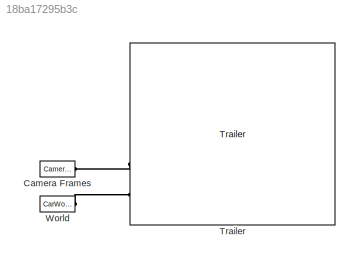
MODEL slx_18ba17295b3c
KIND model
CONFIG AbsTol = auto
CONFIG EnableMultiTasking = on
CONFIG FixedStep = auto
CONFIG MaxStep = auto
CONFIG MinStep = auto
CONFIG RelTol = 1e-3
CONFIG SampleTimeConstraint = Unconstrained
CONFIG SolverName = VariableStepAuto
CONFIG StartTime = 0.0
CONFIG StopTime = 10.0
BLOCK [Reference] Camera Frames  REF=Camera_Frame_Definitions/Camera Frames
  Ports = [0, 0, 0, 0, 0, 0, 1]
  SourceBlock = Camera_Frame_Definitions/Camera Frames
  SourceType = Camera Frame Definitions
BLOCK [Reference] Trailer  REF=Vehicle_Axle1/Trailer
  Ports = [3, 1, 0, 0, 0, 2, 1]
  SourceBlock = Vehicle_Axle1/Trailer
  SourceType = Variants for Trailer
  Tag = PublishSubsystem
BLOCK [Reference] World  REF=sm_car_lib/Environment/CarWorldConfig  (lib defined in slx_05426f0848b6, slx_5dc2867fb1c9)
  AttributesFormatString = %<popup_scene>\nLocal Solver: %<UseLocalSolver>
  Ports = [0, 1, 0, 0, 0, 1]
  SourceBlock = sm_car_lib/Environment/CarWorldConfig
  SourceType = Environment
PLINE Camera Frames:RConn1 -- Trailer:LConn1
PLINE Trailer:LConn2 -- World:LConn1
